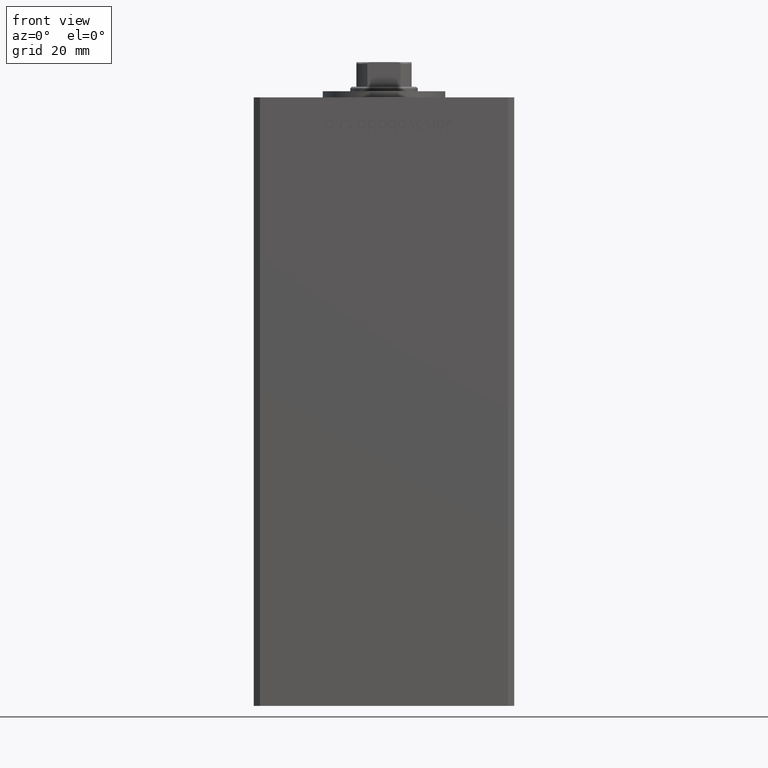
[diagram: clean part render]
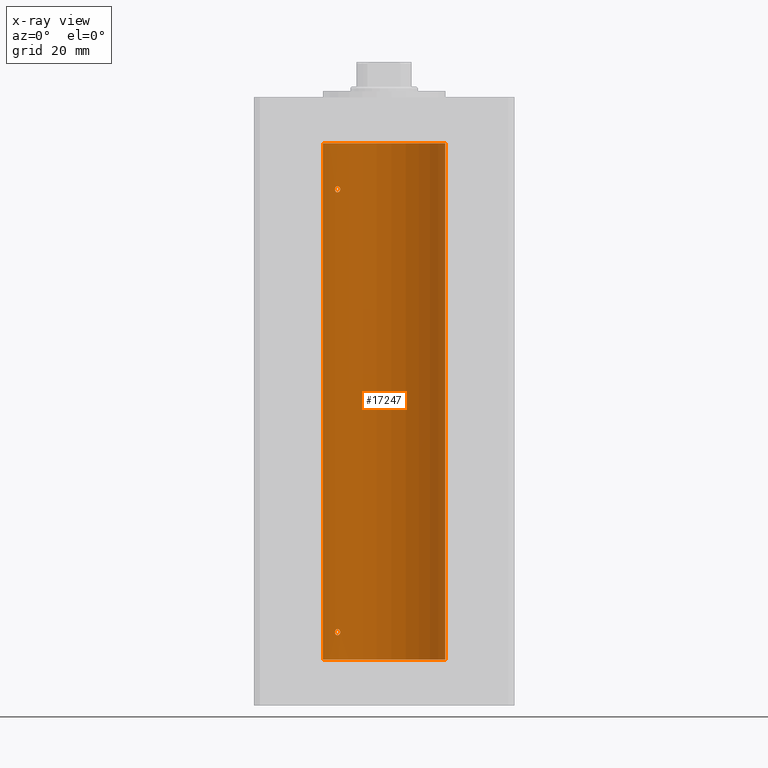
[diagram: x-ray — body ghosted, one internal face saturated and labeled with its STEP entity id]
A machine part, front view, then the same camera in x-ray: the body is ghosted and one INTERNAL B-rep face — a face not visible from any outside direction — is saturated and labeled: STEP entity #17247.
In plain terms, the highlighted cylindrical surface (partial cylindrical patch) has radius 20 mm, axis along (-0, -0, -1).
Its self-contained STEP definition (entity closure, byte-faithful):
#218 = CARTESIAN_POINT ( 'NONE',  ( -15.80861854366320074, 12.25167421322532668, 154.1760529919017415 ) ) ;
#650 = CARTESIAN_POINT ( 'NONE',  ( -14.69171503997126571, 13.57092520311232420, 9.830547039779306218 ) ) ;
#1274 = CARTESIAN_POINT ( 'NONE',  ( -14.78630942130979697, 13.46798002156743479, 154.3914152795840380 ) ) ;
#1787 = EDGE_CURVE ( 'NONE', #27003, #39896, #28302, .T. ) ;
#2395 = CARTESIAN_POINT ( 'NONE',  ( -15.87710824431566614, 12.16238752415382152, 8.434921807322277587 ) ) ;
#2706 = CARTESIAN_POINT ( 'NONE',  ( -15.99999999999999289, 12.00000000000000888, 153.3456921886414364 ) ) ;
#2917 = CARTESIAN_POINT ( 'NONE',  ( -14.43642497935765512, 13.84184969151371547, 8.442053335922926394 ) ) ;
#2961 = LINE ( 'NONE', #3219, #25352 ) ;
#2972 = CARTESIAN_POINT ( 'NONE',  ( -15.97265980134107721, 12.03662641108512332, 153.1953373148639344 ) ) ;
#3219 = CARTESIAN_POINT ( 'NONE',  ( 20.00000000000000000, 2.449293598294706513E-15, 168.5000000000000000 ) ) ;
#3264 = EDGE_CURVE ( 'NONE', #4768, #13513, #21362, .T. ) ;
#3298 = CARTESIAN_POINT ( 'NONE',  ( -14.28285685708537756, 14.00000000000032863, 8.999999999999852562 ) ) ;
#3565 = CIRCLE ( 'NONE', #28820, 20.00000000000000000 ) ;
#3727 = DIRECTION ( 'NONE',  ( -0.000000000000000000, -0.000000000000000000, -1.000000000000000000 ) ) ;
#4695 = CARTESIAN_POINT ( 'NONE',  ( -15.99999999999999289, 12.00000000000001243, 153.6542407199935383 ) ) ;
#4768 = VERTEX_POINT ( 'NONE', #46039 ) ;
#5476 = CARTESIAN_POINT ( 'NONE',  ( -15.37869370082499110, 12.78737709343838524, 154.4843784334833288 ) ) ;
#6850 = CARTESIAN_POINT ( 'NONE',  ( -14.31871019372461795, 13.96358505023715679, 8.697478539577890189 ) ) ;
#7595 = CARTESIAN_POINT ( 'NONE',  ( 0.000000000000000000, 0.000000000000000000, 168.5000000000000000 ) ) ;
#7665 = B_SPLINE_CURVE_WITH_KNOTS ( 'NONE', 3,
 ( #44781, #32892, #21300, #37385, #41604, #32629, #48746, #21567, #1274, #17347, #33427, #28410, #5476, #44516, #13381, #218, #29461, #16288, #4695, #20782 ),
 .UNSPECIFIED., .F., .F.,
 ( 4, 2, 2, 2, 2, 2, 2, 2, 2, 4 ),
 ( 0.003644921977557289642, 0.004100339128177169119, 0.004328047703487108641, 0.004555756278797049030, 0.005011173429416889910, 0.005466590580036730790, 0.005922007730656571670, 0.006377424881276412549, 0.006832842031896252562, 0.007288259182516093442 ),
 .UNSPECIFIED. ) ;
#8461 = CARTESIAN_POINT ( 'NONE',  ( -14.28285685708575770, 13.99999999999999822, 153.3474210506593636 ) ) ;
#9048 = ORIENTED_EDGE ( 'NONE', *, *, #1787, .F. ) ;
#9700 = EDGE_CURVE ( 'NONE', #50621, #37076, #2961, .T. ) ;
#9754 = CARTESIAN_POINT ( 'NONE',  ( -20.00000000000000000, 0.000000000000000000, 168.5000000000000000 ) ) ;
#10295 = CARTESIAN_POINT ( 'NONE',  ( -14.51590294503183820, 13.75881262167379049, 8.336781207422363948 ) ) ;
#11137 = CARTESIAN_POINT ( 'NONE',  ( -14.43642497935765334, 13.84184969151371547, 152.9420533359229637 ) ) ;
#11345 = DIRECTION ( 'NONE',  ( 1.000000000000000000, 0.000000000000000000, 0.000000000000000000 ) ) ;
#11709 = CARTESIAN_POINT ( 'NONE',  ( -14.28285685708573460, 14.00000000000003020, 9.152512609665841126 ) ) ;
#12007 = CARTESIAN_POINT ( 'NONE',  ( -20.00000000000000000, 0.000000000000000000, 0.000000000000000000 ) ) ;
#12494 = CARTESIAN_POINT ( 'NONE',  ( -15.80861854366319719, 12.25167421322532491, 9.676052991901704203 ) ) ;
#12496 = ORIENTED_EDGE ( 'NONE', *, *, #31054, .F. ) ;
#13025 = CARTESIAN_POINT ( 'NONE',  ( -15.56338254739985594, 12.56194079578775202, 9.906815049669283724 ) ) ;
#13284 = CARTESIAN_POINT ( 'NONE',  ( -15.99999999999999645, 12.00000000000000533, 9.000000000000001776 ) ) ;
#13381 = CARTESIAN_POINT ( 'NONE',  ( -15.65267653428112027, 12.45028749062556983, 154.3454911519634720 ) ) ;
#13513 = VERTEX_POINT ( 'NONE', #12007 ) ;
#14507 = CARTESIAN_POINT ( 'NONE',  ( -15.99999999999999645, 12.00000000000000533, 9.000000000000001776 ) ) ;
#14777 = CARTESIAN_POINT ( 'NONE',  ( -15.08054978948644198, 13.13774395934156836, 8.002776544152998994 ) ) ;
#14836 = CARTESIAN_POINT ( 'NONE',  ( -15.87710824431565548, 12.16238752415382507, 152.9349218073222971 ) ) ;
#15305 = CARTESIAN_POINT ( 'NONE',  ( 0.000000000000000000, 0.000000000000000000, 168.5000000000000000 ) ) ;
#16288 = CARTESIAN_POINT ( 'NONE',  ( -15.97258576326347068, 12.03672672663914867, 153.8051374092137848 ) ) ;
#16402 = AXIS2_PLACEMENT_3D ( 'NONE', #15305, #31386, #11345 ) ;
#17247 = ADVANCED_FACE ( 'NONE', ( #46680, #42715, #43492 ), #22911, .F. ) ;
#17347 = CARTESIAN_POINT ( 'NONE',  ( -14.98188199575990964, 13.25008090651448178, 154.4752364028578029 ) ) ;
#17945 = CARTESIAN_POINT ( 'NONE',  ( -14.28285685708575414, 14.00000000000000000, 8.847421050659345809 ) ) ;
#18974 = DIRECTION ( 'NONE',  ( -0.000000000000000000, -0.000000000000000000, -1.000000000000000000 ) ) ;
#18995 = VERTEX_POINT ( 'NONE', #26847 ) ;
#19054 = CARTESIAN_POINT ( 'NONE',  ( -14.98166541227928761, 13.25033217142396325, 152.5247696149142485 ) ) ;
#20412 = CARTESIAN_POINT ( 'NONE',  ( -15.87665094074984928, 12.16298652314402950, 9.566050066014014419 ) ) ;
#20497 = EDGE_CURVE ( 'NONE', #39896, #27003, #7665, .T. ) ;
#20682 = CARTESIAN_POINT ( 'NONE',  ( -14.44276720520014123, 13.83508275448403957, 9.554048662650277635 ) ) ;
#20782 = CARTESIAN_POINT ( 'NONE',  ( -15.99999999999999645, 12.00000000000000711, 153.5000000000000284 ) ) ;
#20993 = EDGE_CURVE ( 'NONE', #50621, #4768, #39148, .T. ) ;
#21300 = CARTESIAN_POINT ( 'NONE',  ( -14.31936354392035149, 13.96291496472315785, 153.8044284570273419 ) ) ;
#21362 = LINE ( 'NONE', #9754, #44573 ) ;
#21567 = CARTESIAN_POINT ( 'NONE',  ( -14.69171503997127104, 13.57092520311232420, 154.3305470397793329 ) ) ;
#22087 = DIRECTION ( 'NONE',  ( 1.000000000000000000, 0.000000000000000000, 0.000000000000000000 ) ) ;
#22911 = CYLINDRICAL_SURFACE ( 'NONE', #41595, 20.00000000000000000 ) ;
#22936 = CARTESIAN_POINT ( 'NONE',  ( -14.28285685708537756, 14.00000000000032863, 8.999999999999852562 ) ) ;
#24059 = ORIENTED_EDGE ( 'NONE', *, *, #3264, .T. ) ;
#24356 = CARTESIAN_POINT ( 'NONE',  ( -14.40763032799400989, 13.87162499441319952, 9.495217475255243400 ) ) ;
#24615 = CARTESIAN_POINT ( 'NONE',  ( -14.51882058315760027, 13.75524947942078313, 9.658734659218600527 ) ) ;
#25352 = VECTOR ( 'NONE', #3727, 1000.000000000000000 ) ;
#26566 = CARTESIAN_POINT ( 'NONE',  ( 0.000000000000000000, 0.000000000000000000, 0.000000000000000000 ) ) ;
#26847 = CARTESIAN_POINT ( 'NONE',  ( -14.28285685708537756, 14.00000000000032863, 8.999999999999852562 ) ) ;
#26888 = CARTESIAN_POINT ( 'NONE',  ( -14.69070843596623099, 13.57200975233014972, 8.170264738076779665 ) ) ;
#26947 = CARTESIAN_POINT ( 'NONE',  ( -14.78531327857342959, 13.46907986586309924, 152.6090990069114923 ) ) ;
#27003 = VERTEX_POINT ( 'NONE', #30614 ) ;
#27206 = CARTESIAN_POINT ( 'NONE',  ( -14.31871019372461085, 13.96358505023716212, 153.1974785395778724 ) ) ;
#27689 = EDGE_LOOP ( 'NONE', ( #9048, #46963 ) ) ;
#27711 = CARTESIAN_POINT ( 'NONE',  ( 20.00000000000000000, 2.449293598294706513E-15, 0.000000000000000000 ) ) ;
#27790 = CARTESIAN_POINT ( 'NONE',  ( -14.31936354392034616, 13.96291496472316496, 9.304428457027322352 ) ) ;
#28171 = ORIENTED_EDGE ( 'NONE', *, *, #41591, .F. ) ;
#28302 = B_SPLINE_CURVE_WITH_KNOTS ( 'NONE', 3,
 ( #38827, #2706, #2972, #14836, #34876, #31170, #50982, #47018, #19054, #26947, #35135, #51234, #11137, #27206, #8461, #48044 ),
 .UNSPECIFIED., .F., .F.,
 ( 4, 2, 2, 2, 2, 2, 2, 4 ),
 ( 0.000000000000000000, 0.0004556152471946448338, 0.0009112304943892896676, 0.001822460988778623354, 0.002278076235973289926, 0.002733691483167956498, 0.003189306730362623070, 0.003644921977557289642 ),
 .UNSPECIFIED. ) ;
#28319 = CARTESIAN_POINT ( 'NONE',  ( -14.98188199575990254, 13.25008090651449244, 9.975236402857756701 ) ) ;
#28409 = ORIENTED_EDGE ( 'NONE', *, *, #35759, .F. ) ;
#28410 = CARTESIAN_POINT ( 'NONE',  ( -15.28000793038419758, 12.90520882930644042, 154.5021502285312920 ) ) ;
#28820 = AXIS2_PLACEMENT_3D ( 'NONE', #26566, #50337, #22087 ) ;
#29111 = CARTESIAN_POINT ( 'NONE',  ( -15.37869370082498044, 12.78737709343839057, 9.984378433483314552 ) ) ;
#29207 = CARTESIAN_POINT ( 'NONE',  ( -14.28285685708538111, 14.00000000000032685, 153.4999999999998863 ) ) ;
#29461 = CARTESIAN_POINT ( 'NONE',  ( -15.87665094074984573, 12.16298652314402595, 154.0660500660140713 ) ) ;
#30042 = VERTEX_POINT ( 'NONE', #35455 ) ;
#30589 = CARTESIAN_POINT ( 'NONE',  ( -15.37869471769012897, 12.79018928545119671, 7.995165913711804073 ) ) ;
#30614 = CARTESIAN_POINT ( 'NONE',  ( -15.99999999999999645, 12.00000000000000711, 153.5000000000000284 ) ) ;
#30637 = EDGE_LOOP ( 'NONE', ( #28409, #12496 ) ) ;
#30858 = CARTESIAN_POINT ( 'NONE',  ( -14.98166541227929116, 13.25033217142396325, 8.024769614914273319 ) ) ;
#31054 = EDGE_CURVE ( 'NONE', #18995, #30042, #36090, .T. ) ;
#31170 = CARTESIAN_POINT ( 'NONE',  ( -15.57359523075762908, 12.55100654799543847, 152.5686142754107379 ) ) ;
#31386 = DIRECTION ( 'NONE',  ( -0.000000000000000000, 0.000000000000000000, 1.000000000000000000 ) ) ;
#32532 = CARTESIAN_POINT ( 'NONE',  ( -15.08229700616151270, 13.13572892147766247, 9.997430752714780766 ) ) ;
#32629 = CARTESIAN_POINT ( 'NONE',  ( -14.51882058315760204, 13.75524947942077958, 154.1587346592186236 ) ) ;
#32892 = CARTESIAN_POINT ( 'NONE',  ( -14.28285685708573105, 14.00000000000002665, 153.6525126096659051 ) ) ;
#33329 = CARTESIAN_POINT ( 'NONE',  ( -15.28000793038418870, 12.90520882930645108, 10.00215022853122981 ) ) ;
#33427 = CARTESIAN_POINT ( 'NONE',  ( -15.08229700616151625, 13.13572892147764826, 154.4974307527148198 ) ) ;
#34815 = CARTESIAN_POINT ( 'NONE',  ( -15.97265980134107721, 12.03662641108511977, 8.695337314863895273 ) ) ;
#34876 = CARTESIAN_POINT ( 'NONE',  ( -15.80909732170550441, 12.25106527276996182, 152.8244517809014269 ) ) ;
#35135 = CARTESIAN_POINT ( 'NONE',  ( -14.69070843596622922, 13.57200975233015505, 152.6702647380768667 ) ) ;
#35455 = CARTESIAN_POINT ( 'NONE',  ( -15.99999999999999645, 12.00000000000000533, 9.000000000000001776 ) ) ;
#35759 = EDGE_CURVE ( 'NONE', #30042, #18995, #52061, .T. ) ;
#36090 = B_SPLINE_CURVE_WITH_KNOTS ( 'NONE', 3,
 ( #3298, #11709, #27790, #24356, #20682, #24615, #41242, #650, #44950, #28319, #32532, #33329, #29111, #13025, #44419, #12494, #20412, #37282, #49440, #13284 ),
 .UNSPECIFIED., .F., .F.,
 ( 4, 2, 2, 2, 2, 2, 2, 2, 2, 4 ),
 ( 0.003644921977557299617, 0.004100339128177156109, 0.004328047703487083488, 0.004555756278797011734, 0.005011173429416868226, 0.005466590580036723851, 0.005922007730656580343, 0.006377424881276436835, 0.006832842031896293328, 0.007288259182516148953 ),
 .UNSPECIFIED. ) ;
#37076 = VERTEX_POINT ( 'NONE', #27711 ) ;
#37084 = EDGE_LOOP ( 'NONE', ( #50084, #48751, #24059, #28171 ) ) ;
#37271 = CARTESIAN_POINT ( 'NONE',  ( -14.78531327857342781, 13.46907986586309569, 8.109099006911453245 ) ) ;
#37282 = CARTESIAN_POINT ( 'NONE',  ( -15.97258576326346713, 12.03672672663914689, 9.305137409213726229 ) ) ;
#37385 = CARTESIAN_POINT ( 'NONE',  ( -14.40763032799402055, 13.87162499441319063, 153.9952174752553447 ) ) ;
#37458 = CARTESIAN_POINT ( 'NONE',  ( 20.00000000000000000, 2.449293598294706513E-15, 168.5000000000000000 ) ) ;
#38827 = CARTESIAN_POINT ( 'NONE',  ( -15.99999999999999645, 12.00000000000000711, 153.5000000000000284 ) ) ;
#39148 = CIRCLE ( 'NONE', #16402, 20.00000000000000000 ) ;
#39272 = DIRECTION ( 'NONE',  ( -1.000000000000000000, 0.000000000000000000, 0.000000000000000000 ) ) ;
#39896 = VERTEX_POINT ( 'NONE', #29207 ) ;
#41242 = CARTESIAN_POINT ( 'NONE',  ( -14.56006338825494772, 13.71162570780885126, 9.705357955363313138 ) ) ;
#41591 = EDGE_CURVE ( 'NONE', #37076, #13513, #3565, .T. ) ;
#41595 = AXIS2_PLACEMENT_3D ( 'NONE', #7595, #18974, #39272 ) ;
#41604 = CARTESIAN_POINT ( 'NONE',  ( -14.44276720520014656, 13.83508275448404312, 154.0540486626503025 ) ) ;
#41663 = DIRECTION ( 'NONE',  ( -0.000000000000000000, -0.000000000000000000, -1.000000000000000000 ) ) ;
#42715 = FACE_BOUND ( 'NONE', #30637, .T. ) ;
#43492 = FACE_BOUND ( 'NONE', #27689, .T. ) ;
#44419 = CARTESIAN_POINT ( 'NONE',  ( -15.65267653428113093, 12.45028749062556450, 9.845491151963429388 ) ) ;
#44516 = CARTESIAN_POINT ( 'NONE',  ( -15.56338254739985949, 12.56194079578775025, 154.4068150496693477 ) ) ;
#44573 = VECTOR ( 'NONE', #41663, 1000.000000000000000 ) ;
#44781 = CARTESIAN_POINT ( 'NONE',  ( -14.28285685708538111, 14.00000000000032685, 153.4999999999998863 ) ) ;
#44950 = CARTESIAN_POINT ( 'NONE',  ( -14.78630942130979342, 13.46798002156744545, 9.891415279583977593 ) ) ;
#46039 = CARTESIAN_POINT ( 'NONE',  ( -20.00000000000000000, 0.000000000000000000, 168.5000000000000000 ) ) ;
#46174 = CARTESIAN_POINT ( 'NONE',  ( -15.80909732170550441, 12.25106527276995649, 8.324451780901405584 ) ) ;
#46680 = FACE_OUTER_BOUND ( 'NONE', #37084, .T. ) ;
#46963 = ORIENTED_EDGE ( 'NONE', *, *, #20497, .F. ) ;
#47018 = CARTESIAN_POINT ( 'NONE',  ( -15.08054978948643488, 13.13774395934156658, 152.5027765441530221 ) ) ;
#48044 = CARTESIAN_POINT ( 'NONE',  ( -14.28285685708538111, 14.00000000000032685, 153.4999999999998863 ) ) ;
#48746 = CARTESIAN_POINT ( 'NONE',  ( -14.56006338825495483, 13.71162570780885481, 154.2053579553633824 ) ) ;
#48751 = ORIENTED_EDGE ( 'NONE', *, *, #20993, .T. ) ;
#49440 = CARTESIAN_POINT ( 'NONE',  ( -16.00000000000000355, 12.00000000000000888, 9.154240719993492092 ) ) ;
#50084 = ORIENTED_EDGE ( 'NONE', *, *, #9700, .F. ) ;
#50337 = DIRECTION ( 'NONE',  ( -0.000000000000000000, 0.000000000000000000, 1.000000000000000000 ) ) ;
#50400 = CARTESIAN_POINT ( 'NONE',  ( -16.00000000000000355, 12.00000000000000711, 8.845692188641406162 ) ) ;
#50621 = VERTEX_POINT ( 'NONE', #37458 ) ;
#50926 = CARTESIAN_POINT ( 'NONE',  ( -15.57359523075763086, 12.55100654799543136, 8.068614275410753933 ) ) ;
#50982 = CARTESIAN_POINT ( 'NONE',  ( -15.37869471769012542, 12.79018928545120204, 152.4951659137118440 ) ) ;
#51234 = CARTESIAN_POINT ( 'NONE',  ( -14.51590294503182932, 13.75881262167379404, 152.8367812074224048 ) ) ;
#52061 = B_SPLINE_CURVE_WITH_KNOTS ( 'NONE', 3,
 ( #14507, #50400, #34815, #2395, #46174, #50926, #30589, #14777, #30858, #37271, #26888, #10295, #2917, #6850, #17945, #22936 ),
 .UNSPECIFIED., .F., .F.,
 ( 4, 2, 2, 2, 2, 2, 2, 4 ),
 ( 1.734723475976807094E-18, 0.0004556152471946670057, 0.0009112304943893322767, 0.001822460988778654796, 0.002278076235973315947, 0.002733691483167977315, 0.003189306730362638249, 0.003644921977557299617 ),
 .UNSPECIFIED. ) ;